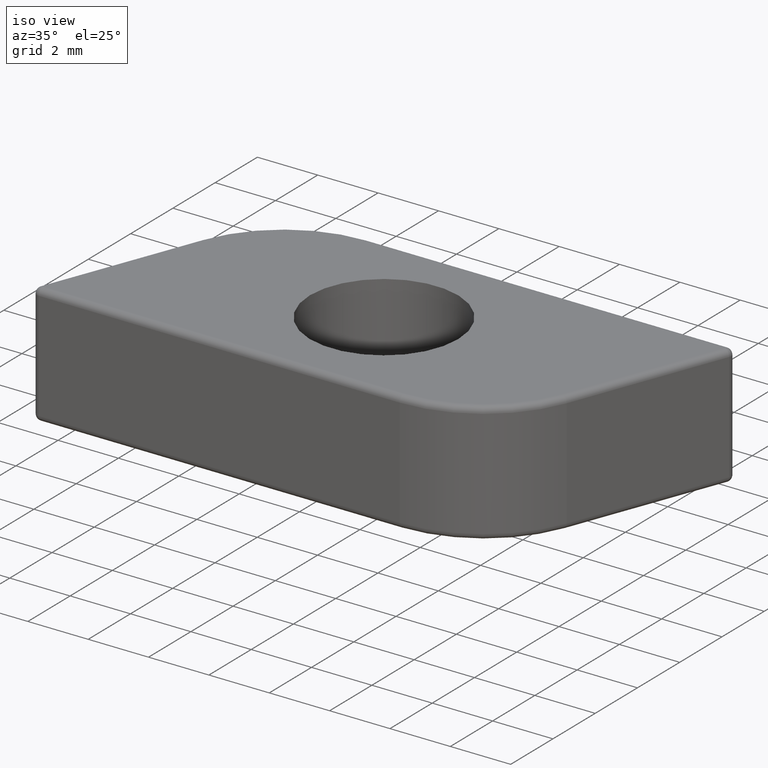
[diagram: clean part render]
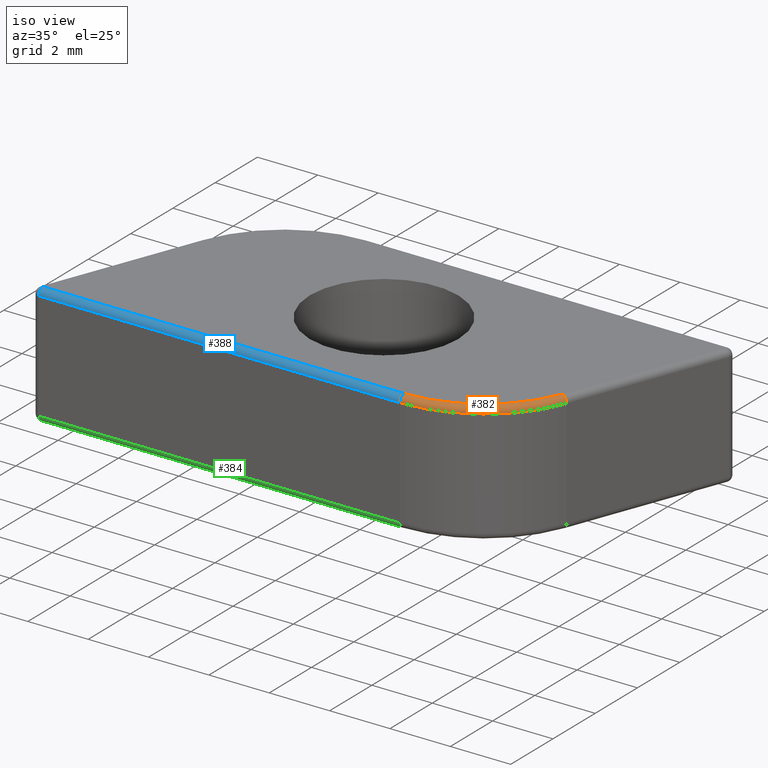
[diagram: same view with three faces highlighted in distinct colors, each labeled with its STEP entity id]
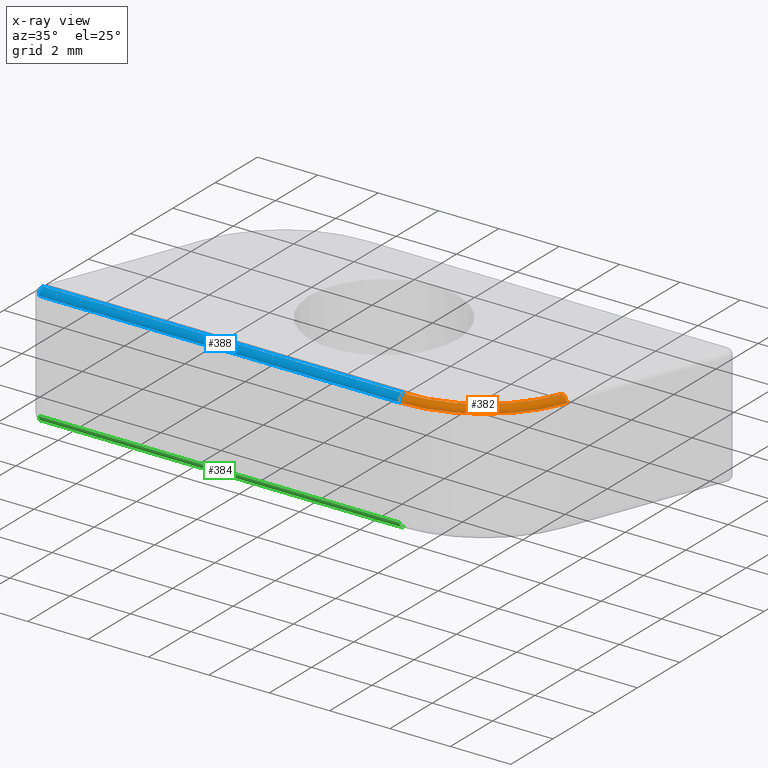
[diagram: x-ray of the same camera — body ghosted, the three highlighted faces saturated]
A machine part, iso view with three faces highlighted in distinct colors.
The next image is the same camera in x-ray (body ghosted, the three faces saturated) — at least one of them is partly hidden behind the body in this view.
Their STEP definitions:

[orange] entity #382 — the highlighted toroidal blend (fillet) surface has major radius 3.8 mm and minor (blend) radius 0.2 mm.
#97=FACE_OUTER_BOUND('',#124,.T.);
#124=EDGE_LOOP('',(#285,#286,#287,#288));
#166=CIRCLE('',#453,0.2);
#167=CIRCLE('',#454,4.);
#168=CIRCLE('',#455,0.2);
#169=CIRCLE('',#456,3.8);
#196=VERTEX_POINT('',#674);
#197=VERTEX_POINT('',#675);
#198=VERTEX_POINT('',#677);
#199=VERTEX_POINT('',#679);
#228=EDGE_CURVE('',#196,#197,#166,.T.);
#229=EDGE_CURVE('',#198,#196,#167,.F.);
#230=EDGE_CURVE('',#199,#198,#168,.T.);
#231=EDGE_CURVE('',#199,#197,#169,.T.);
#285=ORIENTED_EDGE('',*,*,#228,.F.);
#286=ORIENTED_EDGE('',*,*,#229,.F.);
#287=ORIENTED_EDGE('',*,*,#230,.F.);
#288=ORIENTED_EDGE('',*,*,#231,.T.);
#373=TOROIDAL_SURFACE('',#452,3.80000000000001,0.2);
#382=ADVANCED_FACE('',(#97),#373,.T.);
#452=AXIS2_PLACEMENT_3D('',#673,#540,#541);
#453=AXIS2_PLACEMENT_3D('',#676,#542,#543);
#454=AXIS2_PLACEMENT_3D('',#678,#544,#545);
#455=AXIS2_PLACEMENT_3D('',#680,#546,#547);
#456=AXIS2_PLACEMENT_3D('',#681,#548,#549);
#540=DIRECTION('center_axis',(0.,0.,1.));
#541=DIRECTION('ref_axis',(1.,0.,0.));
#542=DIRECTION('center_axis',(-1.,0.,0.));
#543=DIRECTION('ref_axis',(0.,-1.,0.));
#544=DIRECTION('center_axis',(0.,0.,1.));
#545=DIRECTION('ref_axis',(0.933340797033894,-0.358991582898729,0.));
#546=DIRECTION('center_axis',(0.358991582898733,0.933340797033893,0.));
#547=DIRECTION('ref_axis',(0.,0.,1.));
#548=DIRECTION('center_axis',(0.,0.,-1.));
#549=DIRECTION('ref_axis',(0.566130911142145,-0.824315347090762,0.));
#673=CARTESIAN_POINT('Origin',(3.25272308672009,0.100000000000017,3.8));
#674=CARTESIAN_POINT('',(3.25272308672009,-3.9,3.8));
#675=CARTESIAN_POINT('',(3.25272308672009,-3.7,4.));
#676=CARTESIAN_POINT('Origin',(3.25272308672009,-3.7,3.8));
#677=CARTESIAN_POINT('',(6.98608627485566,-1.33596633159492,3.8));
#678=CARTESIAN_POINT('Origin',(3.25272308672009,0.100000000000002,3.8));
#679=CARTESIAN_POINT('',(6.79941811544889,-1.26416801501517,4.));
#680=CARTESIAN_POINT('Origin',(6.79941811544889,-1.26416801501517,3.8));
#681=CARTESIAN_POINT('Origin',(3.25272308672009,0.100000000000002,4.));

[blue] entity #388 — the highlighted cylindrical surface (edge-blend (fillet) strip) has radius 0.2 mm, axis along (1, 0, 0).
#33=LINE('',#704,#58);
#34=LINE('',#705,#59);
#58=VECTOR('',#578,10.);
#59=VECTOR('',#579,10.);
#78=CYLINDRICAL_SURFACE('',#466,0.2);
#103=FACE_OUTER_BOUND('',#130,.T.);
#130=EDGE_LOOP('',(#309,#310,#311,#312));
#156=CIRCLE('',#438,0.2);
#166=CIRCLE('',#453,0.2);
#185=VERTEX_POINT('',#644);
#186=VERTEX_POINT('',#646);
#196=VERTEX_POINT('',#674);
#197=VERTEX_POINT('',#675);
#216=EDGE_CURVE('',#185,#186,#156,.F.);
#228=EDGE_CURVE('',#196,#197,#166,.T.);
#244=EDGE_CURVE('',#197,#185,#33,.T.);
#245=EDGE_CURVE('',#186,#196,#34,.T.);
#309=ORIENTED_EDGE('',*,*,#228,.T.);
#310=ORIENTED_EDGE('',*,*,#244,.T.);
#311=ORIENTED_EDGE('',*,*,#216,.T.);
#312=ORIENTED_EDGE('',*,*,#245,.T.);
#388=ADVANCED_FACE('',(#103),#78,.T.);
#438=AXIS2_PLACEMENT_3D('',#648,#510,#511);
#453=AXIS2_PLACEMENT_3D('',#676,#542,#543);
#466=AXIS2_PLACEMENT_3D('',#703,#576,#577);
#510=DIRECTION('center_axis',(-1.,0.,0.));
#511=DIRECTION('ref_axis',(0.,0.,1.));
#542=DIRECTION('center_axis',(-1.,0.,0.));
#543=DIRECTION('ref_axis',(0.,-1.,0.));
#576=DIRECTION('center_axis',(1.,2.59054110672256E-16,0.));
#577=DIRECTION('ref_axis',(0.,-0.707106781186548,0.707106781186548));
#578=DIRECTION('',(-1.,-2.59054110672256E-16,0.));
#579=DIRECTION('',(1.,2.59054110672256E-16,0.));
#644=CARTESIAN_POINT('',(-8.70878984670604,-3.7,4.));
#646=CARTESIAN_POINT('',(-8.70878984670604,-3.9,3.8));
#648=CARTESIAN_POINT('Origin',(-8.70878984670604,-3.7,3.8));
#674=CARTESIAN_POINT('',(3.25272308672009,-3.9,3.8));
#675=CARTESIAN_POINT('',(3.25272308672009,-3.7,4.));
#676=CARTESIAN_POINT('Origin',(3.25272308672009,-3.7,3.8));
#703=CARTESIAN_POINT('Origin',(-4.5,-3.7,3.8));
#704=CARTESIAN_POINT('',(-4.5,-3.7,4.));
#705=CARTESIAN_POINT('',(-4.5,-3.9,3.8));

[green] entity #384 — the highlighted cylindrical surface (edge-blend (fillet) strip) has radius 0.2 mm, axis along (1, 0, 0).
#25=LINE('',#692,#50);
#26=LINE('',#693,#51);
#50=VECTOR('',#562,10.);
#51=VECTOR('',#563,10.);
#74=CYLINDRICAL_SURFACE('',#462,0.2);
#99=FACE_OUTER_BOUND('',#126,.T.);
#126=EDGE_LOOP('',(#293,#294,#295,#296));
#165=CIRCLE('',#450,0.2);
#171=CIRCLE('',#459,0.2);
#194=VERTEX_POINT('',#665);
#195=VERTEX_POINT('',#667);
#200=VERTEX_POINT('',#683);
#202=VERTEX_POINT('',#686);
#225=EDGE_CURVE('',#194,#195,#165,.F.);
#233=EDGE_CURVE('',#202,#200,#171,.T.);
#236=EDGE_CURVE('',#200,#194,#25,.T.);
#237=EDGE_CURVE('',#195,#202,#26,.T.);
#293=ORIENTED_EDGE('',*,*,#233,.T.);
#294=ORIENTED_EDGE('',*,*,#236,.T.);
#295=ORIENTED_EDGE('',*,*,#225,.T.);
#296=ORIENTED_EDGE('',*,*,#237,.T.);
#384=ADVANCED_FACE('',(#99),#74,.T.);
#450=AXIS2_PLACEMENT_3D('',#669,#534,#535);
#459=AXIS2_PLACEMENT_3D('',#687,#554,#555);
#462=AXIS2_PLACEMENT_3D('',#691,#560,#561);
#534=DIRECTION('center_axis',(-1.,0.,0.));
#535=DIRECTION('ref_axis',(0.,-1.,0.));
#554=DIRECTION('center_axis',(-1.,0.,0.));
#555=DIRECTION('ref_axis',(0.,0.,-1.));
#560=DIRECTION('center_axis',(1.,2.59054110672256E-16,0.));
#561=DIRECTION('ref_axis',(0.,-0.707106781186548,-0.707106781186547));
#562=DIRECTION('',(-1.,-2.59054110672256E-16,0.));
#563=DIRECTION('',(1.,2.59054110672256E-16,0.));
#665=CARTESIAN_POINT('',(-8.70878984670604,-3.9,0.2));
#667=CARTESIAN_POINT('',(-8.70878984670604,-3.7,0.));
#669=CARTESIAN_POINT('Origin',(-8.70878984670604,-3.7,0.2));
#683=CARTESIAN_POINT('',(3.25272308672009,-3.9,0.2));
#686=CARTESIAN_POINT('',(3.25272308672009,-3.7,0.));
#687=CARTESIAN_POINT('Origin',(3.25272308672009,-3.7,0.2));
#691=CARTESIAN_POINT('Origin',(-4.5,-3.7,0.2));
#692=CARTESIAN_POINT('',(-4.5,-3.9,0.2));
#693=CARTESIAN_POINT('',(-4.5,-3.7,0.));